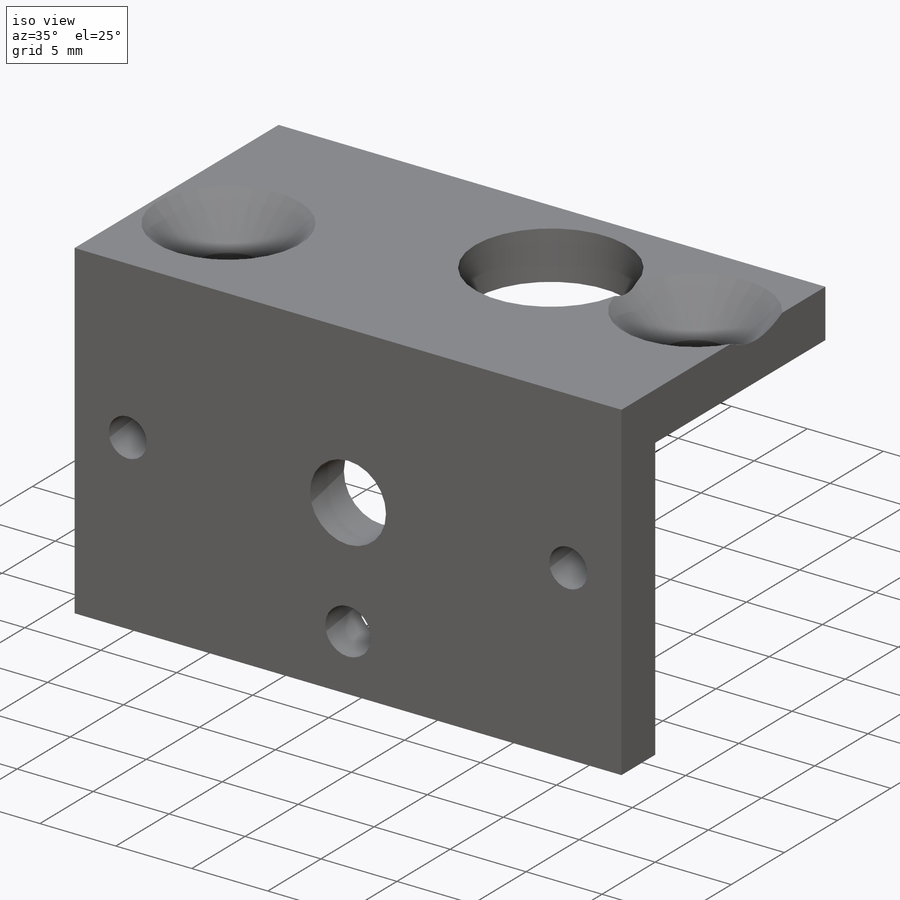
[diagram: iso view]
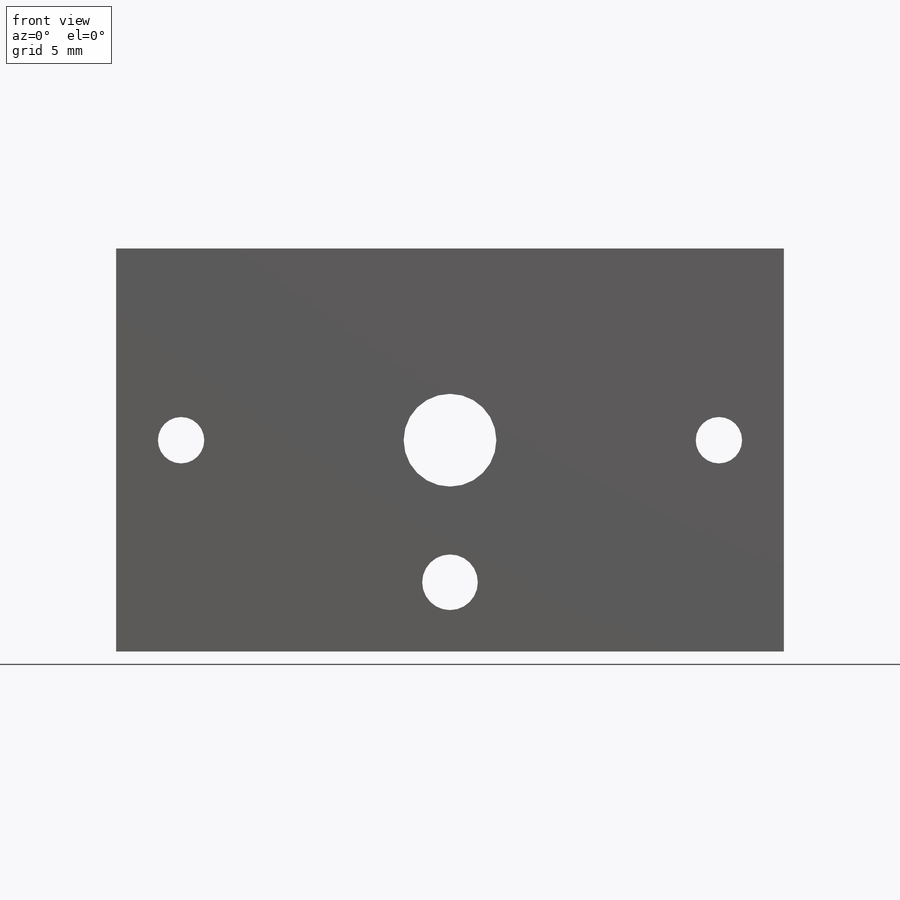
[diagram: front view]
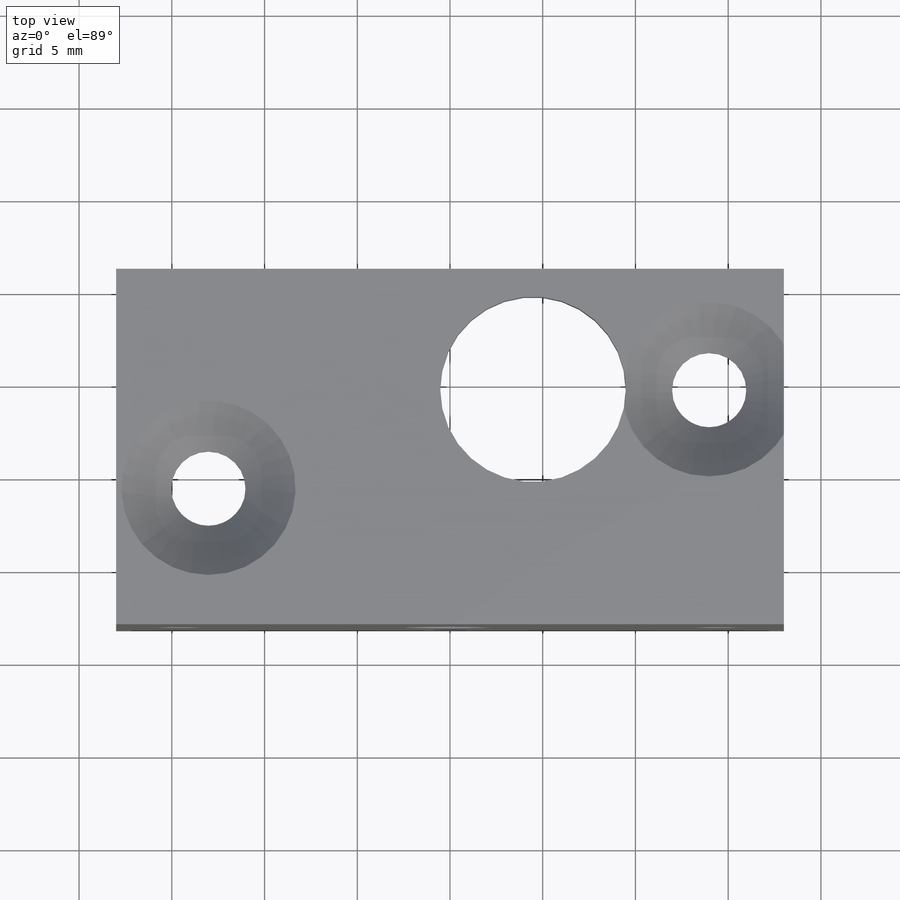
[diagram: top view]
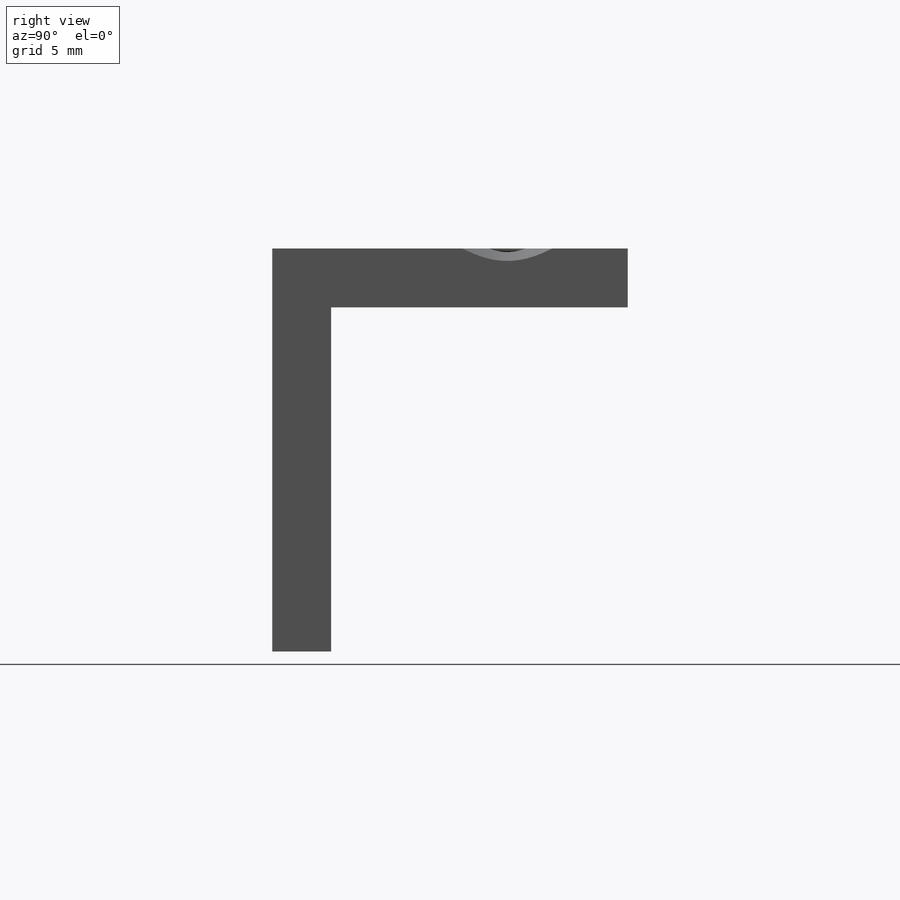
[diagram: right view]
SOLIDWORKS PART (.sldprt)
format: sldprt  version: not decoded by parser v0  size: 262,144 bytes
history: native  units: mm
features: sketch x5, extrude x2, thread x2, material x1, cut_extrude x1, hole x1 (+16 scaffold rows collapsed)
feature tree (28):
  scaffold x16  (default folders/planes/origin — collapsed)
  material  "Material <not specified>"
  sketch  "Sketch1"  dims[c1.D1=~2.111094mm c1.D3=~1.790477mm c1.D4=~1.479143mm c1.D5=1.5mm c2.D1=10.605mm c2.D2=10.605mm c2.D3=10.34mm c3.D1=14.5mm c3.D2=14.5mm c3.D4=18.0mm c3.D5=7.0mm c4.D1=14.5mm c4.D2=14.5mm c4.D5=4.0mm c4.D6=7.0mm c5.D5=36.0mm]
  extrude  "Boss-Extrude1"  [1 undecoded]
  thread  "Cosmetic Thread1"  Diameter=3mm  [1 undecoded]
  thread  "Cosmetic Thread2"  Diameter=3mm  [1 undecoded]
  sketch  "Sketch2"  dims[D1=3.175mm]
  extrude  "Boss-Extrude2"  Depth=16mm
  sketch  "Sketch3"  dims[c1.D1=~5.498897mm c1.D5=~3.428623mm c2.D1=9.5mm c2.D2=~9.891088mm c2.D3=28.0mm c3.D2=27.0mm c3.D3=9.5mm c3.D1=9.5mm c3.D4=13.525mm c3.D5=9.85mm c3.D6=8.0mm c4.D2=27.0mm c4.D6=~4.187088mm]
  cut_extrude  "Cut-Extrude1"  Depth=10mm
  hole  "Escareado para parafuso de máquina com cabeça chata de M42"  Diameter=4mm Depth=21.735397mm
  sketch  "Esboço4"
  sketch  "Esboço3"  dims[hole-wizard template sketch: 54 standard entries collapsed; hole parameters kept: c17.Thru Hole Dia.=4.0mm c17.Thru Hole Depth=~21.735397mm c17.Near C'Sink Dia.=9.4mm c17.D4=~3.666174mm c17.Near C'Sink Angle=90.0deg]
decode coverage: 9 of 11 modeling features carry decoded parameters
note: ~ marks probable driven/reference dimensions
note: 3 parameter values undecoded
note: suppression state not decoded; provenance and decode notes live in map.json
